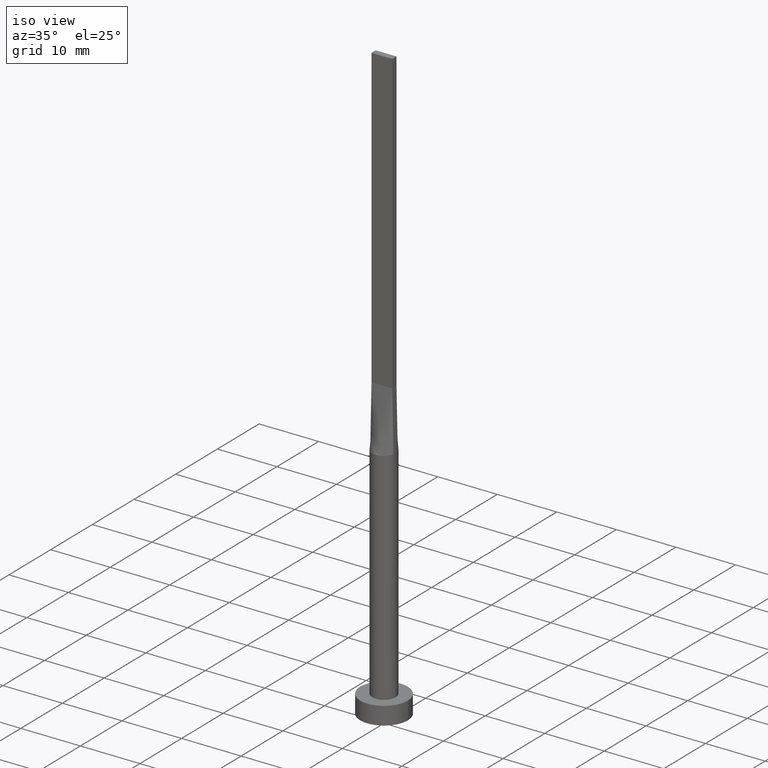
[diagram: clean part render]
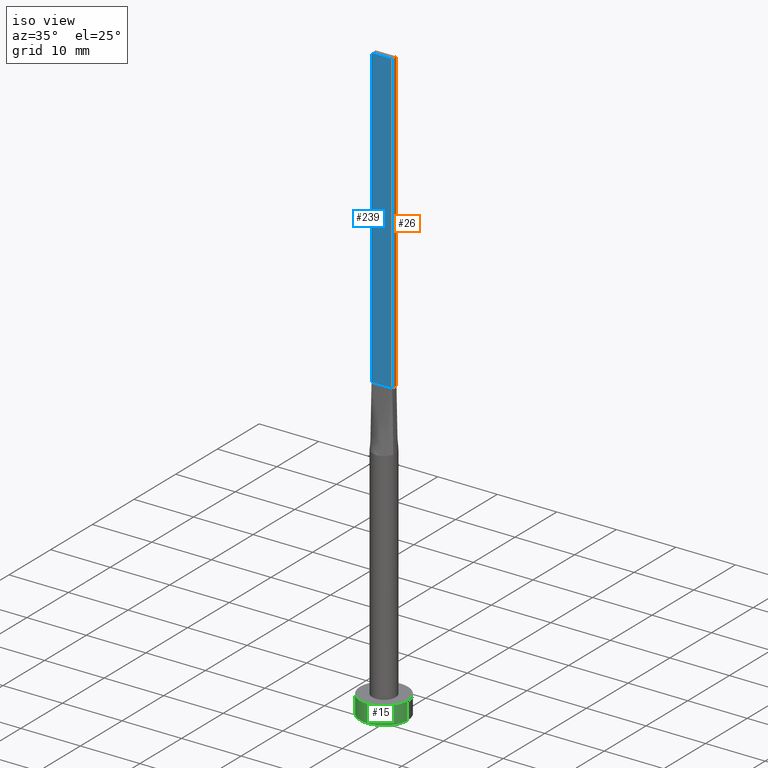
[diagram: same view with three faces highlighted in distinct colors, each labeled with its STEP entity id]
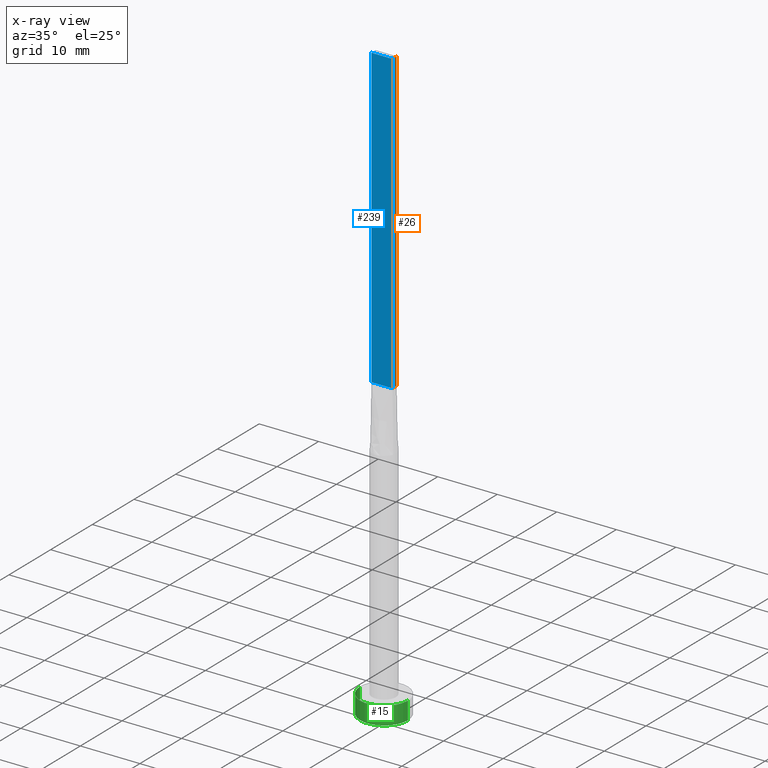
[diagram: x-ray of the same camera — body ghosted, the three highlighted faces saturated]
A machine part, iso view with three faces highlighted in distinct colors.
The next image is the same camera in x-ray (body ghosted, the three faces saturated) — at least one of them is partly hidden behind the body in this view.
Their STEP definitions:

[orange] entity #26 — the highlighted planar face has unit normal (-1, -0, 0).
#3 = VERTEX_POINT ( 'NONE', #136 ) ;
#17 = CARTESIAN_POINT ( 'NONE',  ( 1.749999999999999778, 0.5000000000000002220, 50.00000000000000000 ) ) ;
#22 = DIRECTION ( 'NONE',  ( 2.168404344971008868E-16, -1.000000000000000000, 0.000000000000000000 ) ) ;
#26 = ADVANCED_FACE ( 'NONE', ( #63 ), #237, .F. ) ;
#30 = ORIENTED_EDGE ( 'NONE', *, *, #160, .T. ) ;
#37 = EDGE_CURVE ( 'NONE', #394, #463, #211, .T. ) ;
#63 = FACE_OUTER_BOUND ( 'NONE', #67, .T. ) ;
#67 = EDGE_LOOP ( 'NONE', ( #449, #109, #301, #30 ) ) ;
#81 = CARTESIAN_POINT ( 'NONE',  ( 1.750000000000000000, -0.4999999999999997780, 100.0000000000000000 ) ) ;
#91 = AXIS2_PLACEMENT_3D ( 'NONE', #514, #158, #22 ) ;
#109 = ORIENTED_EDGE ( 'NONE', *, *, #37, .F. ) ;
#136 = CARTESIAN_POINT ( 'NONE',  ( 1.750000000000000000, -0.4999999999999997780, 100.0000000000000000 ) ) ;
#158 = DIRECTION ( 'NONE',  ( -1.000000000000000000, -2.168404344971008868E-16, 0.000000000000000000 ) ) ;
#159 = DIRECTION ( 'NONE',  ( -2.168404344971008868E-16, 1.000000000000000000, -0.000000000000000000 ) ) ;
#160 = EDGE_CURVE ( 'NONE', #3, #346, #278, .T. ) ;
#191 = VECTOR ( 'NONE', #294, 1000.000000000000000 ) ;
#211 = LINE ( 'NONE', #469, #407 ) ;
#213 = CARTESIAN_POINT ( 'NONE',  ( 1.750000000000000000, -0.4999999999999997780, 50.00000000000000000 ) ) ;
#237 = PLANE ( 'NONE',  #91 ) ;
#278 = LINE ( 'NONE', #529, #323 ) ;
#294 = DIRECTION ( 'NONE',  ( -2.168404344971008868E-16, 1.000000000000000000, 0.000000000000000000 ) ) ;
#301 = ORIENTED_EDGE ( 'NONE', *, *, #348, .F. ) ;
#302 = LINE ( 'NONE', #81, #191 ) ;
#323 = VECTOR ( 'NONE', #447, 1000.000000000000000 ) ;
#346 = VERTEX_POINT ( 'NONE', #213 ) ;
#348 = EDGE_CURVE ( 'NONE', #3, #394, #302, .T. ) ;
#377 = LINE ( 'NONE', #553, #384 ) ;
#384 = VECTOR ( 'NONE', #159, 1000.000000000000000 ) ;
#394 = VERTEX_POINT ( 'NONE', #579 ) ;
#407 = VECTOR ( 'NONE', #555, 1000.000000000000000 ) ;
#447 = DIRECTION ( 'NONE',  ( -0.000000000000000000, -0.000000000000000000, -1.000000000000000000 ) ) ;
#449 = ORIENTED_EDGE ( 'NONE', *, *, #498, .T. ) ;
#463 = VERTEX_POINT ( 'NONE', #17 ) ;
#469 = CARTESIAN_POINT ( 'NONE',  ( 1.749999999999999778, 0.5000000000000002220, 100.0000000000000000 ) ) ;
#498 = EDGE_CURVE ( 'NONE', #346, #463, #377, .T. ) ;
#514 = CARTESIAN_POINT ( 'NONE',  ( 1.750000000000000000, -0.4999999999999997780, 100.0000000000000000 ) ) ;
#529 = CARTESIAN_POINT ( 'NONE',  ( 1.750000000000000000, -0.4999999999999997780, 100.0000000000000000 ) ) ;
#553 = CARTESIAN_POINT ( 'NONE',  ( 1.749999999999999778, 0.5000000000000002220, 50.00000000000000000 ) ) ;
#555 = DIRECTION ( 'NONE',  ( -0.000000000000000000, -0.000000000000000000, -1.000000000000000000 ) ) ;
#579 = CARTESIAN_POINT ( 'NONE',  ( 1.749999999999999778, 0.5000000000000002220, 100.0000000000000000 ) ) ;

[blue] entity #239 — the highlighted planar face has unit normal (0, 1, -0).
#3 = VERTEX_POINT ( 'NONE', #136 ) ;
#39 = LINE ( 'NONE', #423, #460 ) ;
#66 = ORIENTED_EDGE ( 'NONE', *, *, #160, .F. ) ;
#83 = DIRECTION ( 'NONE',  ( -0.000000000000000000, -0.000000000000000000, -1.000000000000000000 ) ) ;
#100 = DIRECTION ( 'NONE',  ( 1.000000000000000000, -6.195440985631454085E-17, 0.000000000000000000 ) ) ;
#123 = EDGE_CURVE ( 'NONE', #414, #346, #128, .T. ) ;
#128 = LINE ( 'NONE', #573, #360 ) ;
#136 = CARTESIAN_POINT ( 'NONE',  ( 1.750000000000000000, -0.4999999999999997780, 100.0000000000000000 ) ) ;
#143 = ORIENTED_EDGE ( 'NONE', *, *, #551, .T. ) ;
#145 = EDGE_CURVE ( 'NONE', #319, #3, #430, .T. ) ;
#160 = EDGE_CURVE ( 'NONE', #3, #346, #278, .T. ) ;
#178 = AXIS2_PLACEMENT_3D ( 'NONE', #387, #307, #570 ) ;
#212 = VECTOR ( 'NONE', #100, 1000.000000000000000 ) ;
#213 = CARTESIAN_POINT ( 'NONE',  ( 1.750000000000000000, -0.4999999999999997780, 50.00000000000000000 ) ) ;
#220 = CARTESIAN_POINT ( 'NONE',  ( -1.750000000000000000, -0.4999999999999995559, 50.00000000000000000 ) ) ;
#239 = ADVANCED_FACE ( 'NONE', ( #425 ), #350, .F. ) ;
#245 = ORIENTED_EDGE ( 'NONE', *, *, #145, .F. ) ;
#278 = LINE ( 'NONE', #529, #323 ) ;
#307 = DIRECTION ( 'NONE',  ( 6.195440985631454085E-17, 1.000000000000000000, -0.000000000000000000 ) ) ;
#319 = VERTEX_POINT ( 'NONE', #559 ) ;
#323 = VECTOR ( 'NONE', #447, 1000.000000000000000 ) ;
#346 = VERTEX_POINT ( 'NONE', #213 ) ;
#350 = PLANE ( 'NONE',  #178 ) ;
#360 = VECTOR ( 'NONE', #478, 1000.000000000000000 ) ;
#382 = EDGE_LOOP ( 'NONE', ( #471, #66, #245, #143 ) ) ;
#387 = CARTESIAN_POINT ( 'NONE',  ( -1.750000000000000000, -0.4999999999999995559, 100.0000000000000000 ) ) ;
#414 = VERTEX_POINT ( 'NONE', #220 ) ;
#423 = CARTESIAN_POINT ( 'NONE',  ( -1.750000000000000000, -0.4999999999999995559, 100.0000000000000000 ) ) ;
#425 = FACE_OUTER_BOUND ( 'NONE', #382, .T. ) ;
#430 = LINE ( 'NONE', #541, #212 ) ;
#447 = DIRECTION ( 'NONE',  ( -0.000000000000000000, -0.000000000000000000, -1.000000000000000000 ) ) ;
#460 = VECTOR ( 'NONE', #83, 1000.000000000000000 ) ;
#471 = ORIENTED_EDGE ( 'NONE', *, *, #123, .T. ) ;
#478 = DIRECTION ( 'NONE',  ( 1.000000000000000000, -6.195440985631454085E-17, 0.000000000000000000 ) ) ;
#529 = CARTESIAN_POINT ( 'NONE',  ( 1.750000000000000000, -0.4999999999999997780, 100.0000000000000000 ) ) ;
#541 = CARTESIAN_POINT ( 'NONE',  ( -1.750000000000000000, -0.4999999999999995559, 100.0000000000000000 ) ) ;
#551 = EDGE_CURVE ( 'NONE', #319, #414, #39, .T. ) ;
#559 = CARTESIAN_POINT ( 'NONE',  ( -1.750000000000000000, -0.4999999999999995559, 100.0000000000000000 ) ) ;
#570 = DIRECTION ( 'NONE',  ( -1.000000000000000000, 6.195440985631454085E-17, 0.000000000000000000 ) ) ;
#573 = CARTESIAN_POINT ( 'NONE',  ( -1.750000000000000000, -0.4999999999999995559, 50.00000000000000000 ) ) ;

[green] entity #15 — the highlighted cylindrical surface (edge-blend (fillet) strip) has radius 4 mm, axis along (-0, -0, -1).
#5 = DIRECTION ( 'NONE',  ( 1.000000000000000000, 0.000000000000000000, 0.000000000000000000 ) ) ;
#15 = ADVANCED_FACE ( 'NONE', ( #95 ), #92, .T. ) ;
#25 = DIRECTION ( 'NONE',  ( 0.000000000000000000, 0.000000000000000000, 1.000000000000000000 ) ) ;
#27 = AXIS2_PLACEMENT_3D ( 'NONE', #534, #226, #5 ) ;
#82 = AXIS2_PLACEMENT_3D ( 'NONE', #271, #188, #195 ) ;
#92 = CYLINDRICAL_SURFACE ( 'NONE', #82, 4.000000000000000000 ) ;
#95 = FACE_OUTER_BOUND ( 'NONE', #209, .T. ) ;
#117 = CARTESIAN_POINT ( 'NONE',  ( 4.000000000000000000, 4.898587196589412829E-16, 3.000000000000000000 ) ) ;
#151 = CARTESIAN_POINT ( 'NONE',  ( -4.000000000000000000, 0.000000000000000000, 0.000000000000000000 ) ) ;
#184 = ORIENTED_EDGE ( 'NONE', *, *, #388, .F. ) ;
#188 = DIRECTION ( 'NONE',  ( -0.000000000000000000, -0.000000000000000000, -1.000000000000000000 ) ) ;
#195 = DIRECTION ( 'NONE',  ( -1.000000000000000000, 0.000000000000000000, 0.000000000000000000 ) ) ;
#206 = EDGE_CURVE ( 'NONE', #552, #548, #508, .T. ) ;
#209 = EDGE_LOOP ( 'NONE', ( #184, #243, #361, #564 ) ) ;
#215 = VERTEX_POINT ( 'NONE', #151 ) ;
#217 = CARTESIAN_POINT ( 'NONE',  ( 4.000000000000000000, 4.898587196589412829E-16, 3.000000000000000000 ) ) ;
#226 = DIRECTION ( 'NONE',  ( 0.000000000000000000, 0.000000000000000000, 1.000000000000000000 ) ) ;
#227 = DIRECTION ( 'NONE',  ( -0.000000000000000000, -0.000000000000000000, -1.000000000000000000 ) ) ;
#240 = CARTESIAN_POINT ( 'NONE',  ( 4.000000000000000000, 4.898587196589412829E-16, 0.000000000000000000 ) ) ;
#243 = ORIENTED_EDGE ( 'NONE', *, *, #206, .F. ) ;
#271 = CARTESIAN_POINT ( 'NONE',  ( 0.000000000000000000, 0.000000000000000000, 3.000000000000000000 ) ) ;
#279 = EDGE_CURVE ( 'NONE', #215, #486, #417, .T. ) ;
#308 = VECTOR ( 'NONE', #227, 1000.000000000000000 ) ;
#338 = CARTESIAN_POINT ( 'NONE',  ( -4.000000000000000000, 0.000000000000000000, 3.000000000000000000 ) ) ;
#349 = AXIS2_PLACEMENT_3D ( 'NONE', #464, #25, #428 ) ;
#361 = ORIENTED_EDGE ( 'NONE', *, *, #405, .T. ) ;
#366 = DIRECTION ( 'NONE',  ( -0.000000000000000000, -0.000000000000000000, -1.000000000000000000 ) ) ;
#388 = EDGE_CURVE ( 'NONE', #548, #486, #435, .T. ) ;
#397 = CARTESIAN_POINT ( 'NONE',  ( -4.000000000000000000, 0.000000000000000000, 3.000000000000000000 ) ) ;
#405 = EDGE_CURVE ( 'NONE', #552, #215, #437, .T. ) ;
#417 = CIRCLE ( 'NONE', #349, 4.000000000000000000 ) ;
#428 = DIRECTION ( 'NONE',  ( 1.000000000000000000, 0.000000000000000000, 0.000000000000000000 ) ) ;
#435 = LINE ( 'NONE', #217, #308 ) ;
#437 = LINE ( 'NONE', #397, #467 ) ;
#464 = CARTESIAN_POINT ( 'NONE',  ( 0.000000000000000000, 0.000000000000000000, 0.000000000000000000 ) ) ;
#467 = VECTOR ( 'NONE', #366, 1000.000000000000000 ) ;
#486 = VERTEX_POINT ( 'NONE', #240 ) ;
#508 = CIRCLE ( 'NONE', #27, 4.000000000000000000 ) ;
#534 = CARTESIAN_POINT ( 'NONE',  ( 0.000000000000000000, 0.000000000000000000, 3.000000000000000000 ) ) ;
#548 = VERTEX_POINT ( 'NONE', #117 ) ;
#552 = VERTEX_POINT ( 'NONE', #338 ) ;
#564 = ORIENTED_EDGE ( 'NONE', *, *, #279, .T. ) ;